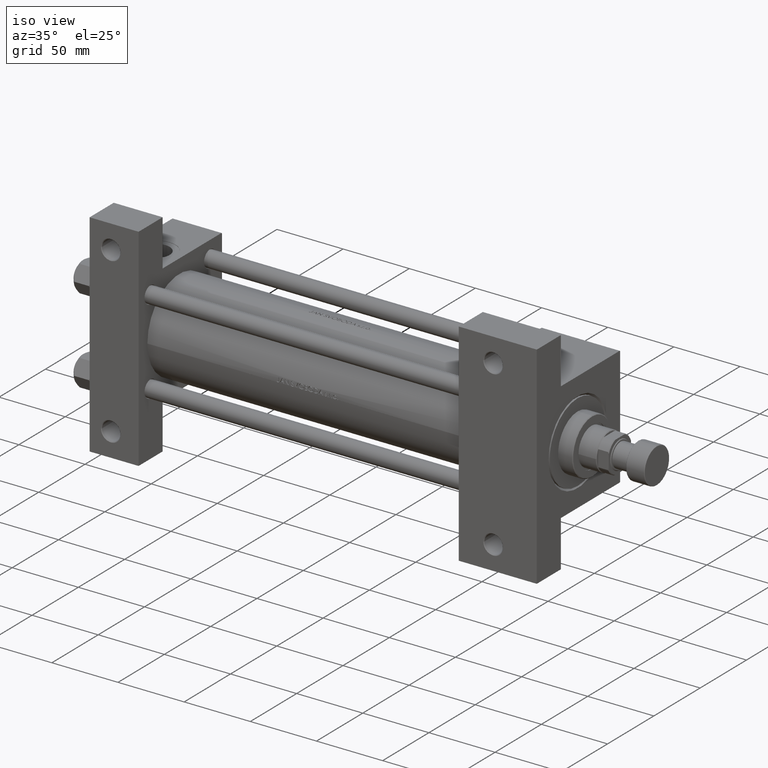
[diagram: clean part render]
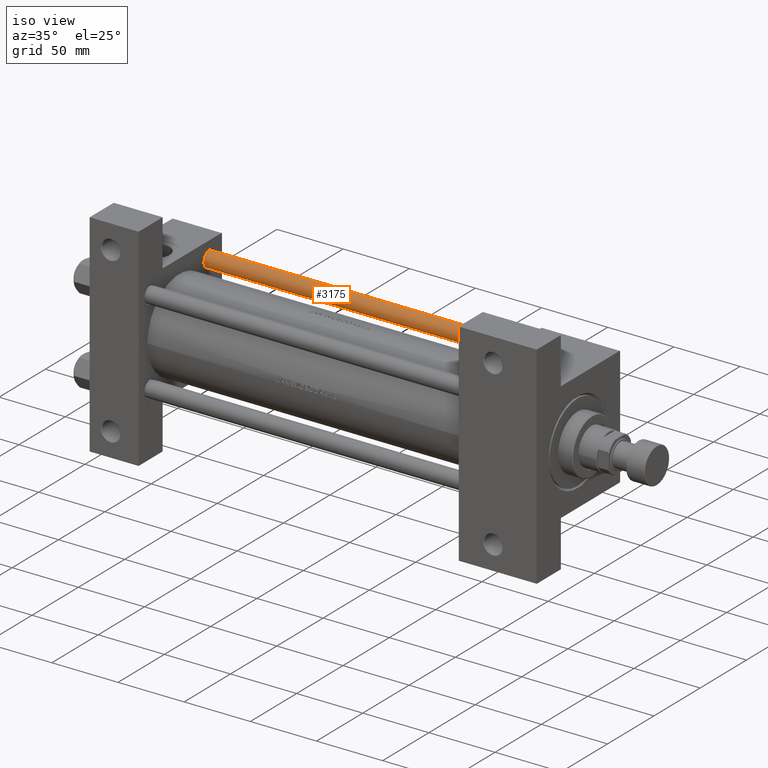
[diagram: same view with one face highlighted and labeled with its STEP entity id]
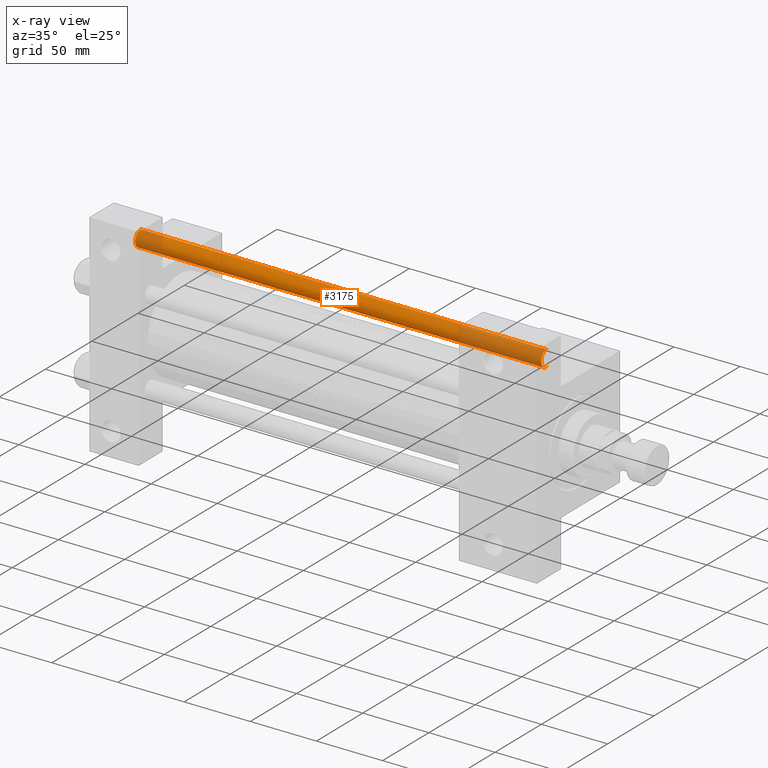
[diagram: x-ray of the same camera — body ghosted, the highlighted face saturated]
A machine part, iso view. The second image highlights one B-rep face of the part: STEP entity #3175.
The next image is the same camera in x-ray: the body ghosted, the highlighted face saturated — about 27% of this face is hidden behind the body in this view.
In plain terms, the highlighted cylindrical surface (edge-blend (fillet) strip) has radius 6 mm, axis along (-1, -0, -0).
Its self-contained STEP definition (entity closure, byte-faithful):
#1363 = DIRECTION ( 'NONE',  ( -0.000000000000000000, -0.000000000000000000, -1.000000000000000000 ) ) ;
#1617 = CARTESIAN_POINT ( 'NONE',  ( 0.000000000000000000, 0.000000000000000000, 308.0000000000000000 ) ) ;
#3175 = ADVANCED_FACE ( 'NONE', ( #43693 ), #44183, .T. ) ;
#3532 = CIRCLE ( 'NONE', #33472, 6.000000000000000888 ) ;
#5179 = LINE ( 'NONE', #36850, #29706 ) ;
#6274 = LINE ( 'NONE', #49327, #12818 ) ;
#6521 = DIRECTION ( 'NONE',  ( -0.000000000000000000, -0.000000000000000000, -1.000000000000000000 ) ) ;
#6607 = EDGE_CURVE ( 'NONE', #28093, #49217, #5179, .T. ) ;
#7252 = DIRECTION ( 'NONE',  ( 1.000000000000000000, 0.000000000000000000, 0.000000000000000000 ) ) ;
#7598 = CARTESIAN_POINT ( 'NONE',  ( -6.000000000000000888, 0.000000000000000000, 307.4999999999999432 ) ) ;
#10227 = EDGE_CURVE ( 'NONE', #36142, #18919, #6274, .T. ) ;
#12818 = VECTOR ( 'NONE', #6521, 1000.000000000000000 ) ;
#14029 = DIRECTION ( 'NONE',  ( 1.000000000000000000, 0.000000000000000000, 0.000000000000000000 ) ) ;
#14522 = DIRECTION ( 'NONE',  ( -0.000000000000000000, -0.000000000000000000, 1.000000000000000000 ) ) ;
#17085 = DIRECTION ( 'NONE',  ( -1.000000000000000000, 0.000000000000000000, 0.000000000000000000 ) ) ;
#17115 = CARTESIAN_POINT ( 'NONE',  ( 6.000000000000000888, 7.347880794884120722E-16, 307.4999999999999432 ) ) ;
#18212 = ORIENTED_EDGE ( 'NONE', *, *, #22272, .T. ) ;
#18919 = VERTEX_POINT ( 'NONE', #20629 ) ;
#19396 = DIRECTION ( 'NONE',  ( 0.000000000000000000, 0.000000000000000000, -1.000000000000000000 ) ) ;
#20629 = CARTESIAN_POINT ( 'NONE',  ( -6.000000000000000888, 0.000000000000000000, 0.5000000000000559552 ) ) ;
#22272 = EDGE_CURVE ( 'NONE', #18919, #49217, #42305, .T. ) ;
#24346 = EDGE_CURVE ( 'NONE', #28093, #36142, #3532, .T. ) ;
#27585 = EDGE_LOOP ( 'NONE', ( #37891, #40236, #30733, #18212 ) ) ;
#28093 = VERTEX_POINT ( 'NONE', #17115 ) ;
#29706 = VECTOR ( 'NONE', #1363, 1000.000000000000000 ) ;
#30733 = ORIENTED_EDGE ( 'NONE', *, *, #10227, .T. ) ;
#33472 = AXIS2_PLACEMENT_3D ( 'NONE', #33868, #19396, #7252 ) ;
#33868 = CARTESIAN_POINT ( 'NONE',  ( 0.000000000000000000, 0.000000000000000000, 307.4999999999999432 ) ) ;
#34036 = CARTESIAN_POINT ( 'NONE',  ( 0.000000000000000000, 0.000000000000000000, 0.5000000000000559552 ) ) ;
#35875 = AXIS2_PLACEMENT_3D ( 'NONE', #34036, #14522, #14029 ) ;
#36142 = VERTEX_POINT ( 'NONE', #7598 ) ;
#36850 = CARTESIAN_POINT ( 'NONE',  ( 6.000000000000000888, 7.347880794884120722E-16, 308.0000000000000000 ) ) ;
#37891 = ORIENTED_EDGE ( 'NONE', *, *, #6607, .F. ) ;
#40236 = ORIENTED_EDGE ( 'NONE', *, *, #24346, .T. ) ;
#41698 = AXIS2_PLACEMENT_3D ( 'NONE', #1617, #47505, #17085 ) ;
#42305 = CIRCLE ( 'NONE', #35875, 6.000000000000000888 ) ;
#43693 = FACE_OUTER_BOUND ( 'NONE', #27585, .T. ) ;
#44183 = CYLINDRICAL_SURFACE ( 'NONE', #41698, 6.000000000000000888 ) ;
#46002 = CARTESIAN_POINT ( 'NONE',  ( 6.000000000000000888, 7.347880794884120722E-16, 0.5000000000000559552 ) ) ;
#47505 = DIRECTION ( 'NONE',  ( -0.000000000000000000, -0.000000000000000000, -1.000000000000000000 ) ) ;
#49217 = VERTEX_POINT ( 'NONE', #46002 ) ;
#49327 = CARTESIAN_POINT ( 'NONE',  ( -6.000000000000000888, 0.000000000000000000, 308.0000000000000000 ) ) ;